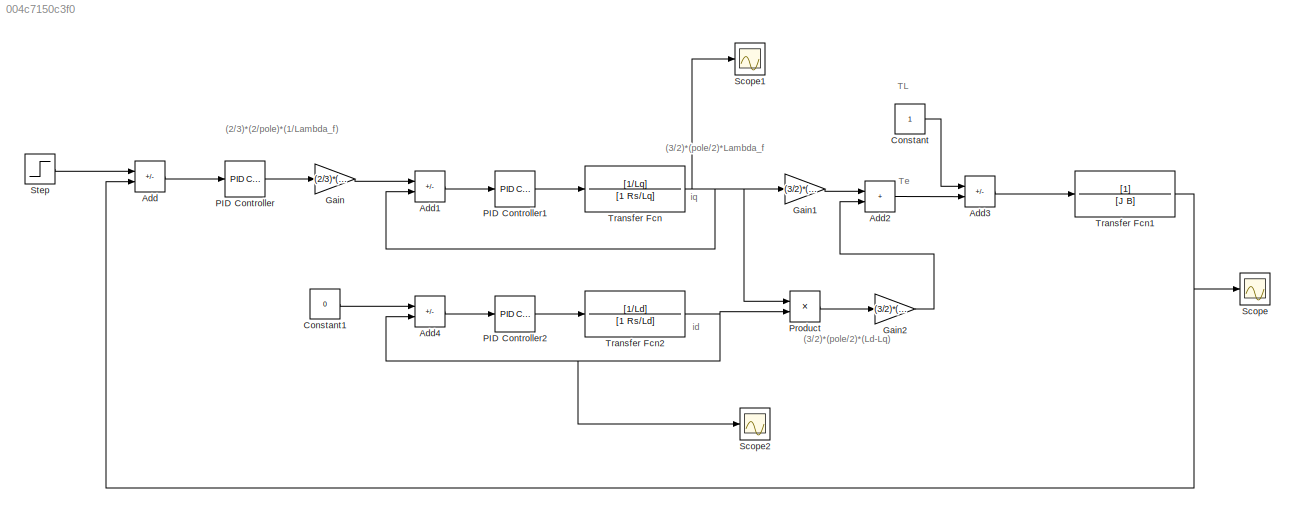
MODEL slx_004c7150c3f0
KIND model
CONFIG AbsTol = auto
CONFIG EnableMultiTasking = off
CONFIG FixedStep = auto
CONFIG MaxStep = auto
CONFIG MinStep = auto
CONFIG RelTol = 1e-3
CONFIG SampleTimeConstraint = Unconstrained
CONFIG SolverName = VariableStepAuto
CONFIG StartTime = 0.0
CONFIG StopTime = 10.0
BLOCK [Sum] Add
  IconShape = rectangular
  Inputs = +-
BLOCK [Sum] Add1
  IconShape = rectangular
  Inputs = +-
BLOCK [Sum] Add2
  IconShape = rectangular
BLOCK [Sum] Add3
  IconShape = rectangular
  Inputs = -+
BLOCK [Sum] Add4
  IconShape = rectangular
  Inputs = +-
BLOCK [Constant] Constant
BLOCK [Constant] Constant1
  Value = 0
BLOCK [Gain] Gain
  Gain = (2/3)*(2/pole)*(1/Lambda_f)
BLOCK [Gain] Gain1
  Gain = (3/2)*(pole/2)*Lambda_f
BLOCK [Gain] Gain2
  Gain = (3/2)*(pole/2)*(Ld-Lq)
BLOCK [Reference] PID Controller  REF=slpidlib/PID Controller
  LibrarySourceBlock = simulink/Continuous/PID Controller
  SourceBlock = slpidlib/PID Controller
  SourceType = PID 1dof
BLOCK [Reference] PID Controller1  REF=slpidlib/PID Controller
  LibrarySourceBlock = simulink/Continuous/PID Controller
  SourceBlock = slpidlib/PID Controller
  SourceType = PID 1dof
BLOCK [Reference] PID Controller2  REF=slpidlib/PID Controller
  LibrarySourceBlock = simulink/Continuous/PID Controller
  SourceBlock = slpidlib/PID Controller
  SourceType = PID 1dof
BLOCK [Product] Product
BLOCK [Scope] Scope
  Floating = off
  NumInputPorts = 1
  ScopeSpecificationString = Simulink.scopes.TimeScopeBlockCfg('CurrentConfiguration', extmgr.ConfigurationSet(extmgr.Configuration('Core','General UI',true),extmgr.Configuration('Core','Source UI',true),extmgr.Configuration('Sources','WiredSimulink',true),extmgr.Configuration('Visuals','Time Domain',true,'SerializedDisplays',{struct('MinYLimReal','-408.64197','MaxYLimReal','112.52495','YLabelReal','','MinYLimMag',' 0.00000',...<+1418ch>
BLOCK [Scope] Scope1
  Floating = off
  NumInputPorts = 1
  ScopeSpecificationString = Simulink.scopes.TimeScopeBlockCfg('CurrentConfiguration', extmgr.ConfigurationSet(extmgr.Configuration('Core','General UI',true),extmgr.Configuration('Core','Source UI',true),extmgr.Configuration('Sources','WiredSimulink',true,'DataLoggingVariableName','ScopeData1'),extmgr.Configuration('Visuals','Time Domain',true,'SerializedDisplays',{struct('MinYLimReal','-15.73083','MaxYLimReal','141.57744','Y...<+1381ch>
BLOCK [Scope] Scope2
  Floating = off
  NumInputPorts = 1
  ScopeSpecificationString = Simulink.scopes.TimeScopeBlockCfg('CurrentConfiguration', extmgr.ConfigurationSet(extmgr.Configuration('Core','General UI',true),extmgr.Configuration('Core','Source UI',true),extmgr.Configuration('Sources','WiredSimulink',true,'DataLoggingVariableName','ScopeData2'),extmgr.Configuration('Visuals','Time Domain',true,'SerializedDisplays',{struct('MinYLimReal','-1.00000','MaxYLimReal','1.00000','YLab...<+1372ch>
BLOCK [Step] Step
  After = 100
  SampleTime = 0
BLOCK [TransferFcn] Transfer Fcn
  Denominator = [1 Rs/Lq]
  Numerator = [1/Lq]
BLOCK [TransferFcn] Transfer Fcn1
  Denominator = [J B]
BLOCK [TransferFcn] Transfer Fcn2
  Denominator = [1 Rs/Ld]
  Numerator = [1/Ld]
ANNOTATION (root): (2/3)*(2/pole)*(1/Lambda_f)
ANNOTATION (root): (3/2)*(pole/2)*(Ld-Lq)
ANNOTATION (root): (3/2)*(pole/2)*Lambda_f
ANNOTATION (root): TL
ANNOTATION (root): Te
ANNOTATION (root): id
ANNOTATION (root): iq
LINE Add1:1 -> PID Controller1:1
LINE Add2:1 -> Add3:2
LINE Add3:1 -> Transfer Fcn1:1
LINE Add4:1 -> PID Controller2:1
LINE Add:1 -> PID Controller:1
LINE Constant1:1 -> Add4:1
LINE Constant:1 -> Add3:1
LINE Gain1:1 -> Add2:1
LINE Gain2:1 -> Add2:2
LINE Gain:1 -> Add1:1
LINE PID Controller1:1 -> Transfer Fcn:1
LINE PID Controller2:1 -> Transfer Fcn2:1
LINE PID Controller:1 -> Gain:1
LINE Product:1 -> Gain2:1
LINE Step:1 -> Add:1
NET Transfer Fcn1:1 -> Add:2, Scope:1
NET Transfer Fcn2:1 -> Add4:2, Product:2, Scope2:1
NET Transfer Fcn:1 -> Add1:2, Gain1:1, Product:1, Scope1:1
note: NET lines group one-source signal fan-out (src -> all destinations, sorted); 1:1 wires keep LINE
